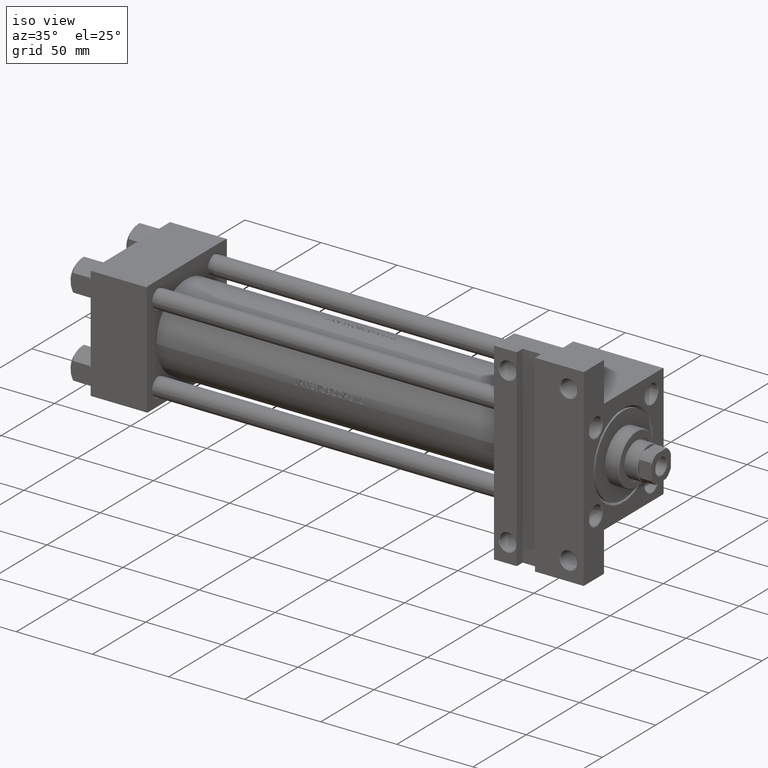
[diagram: clean part render]
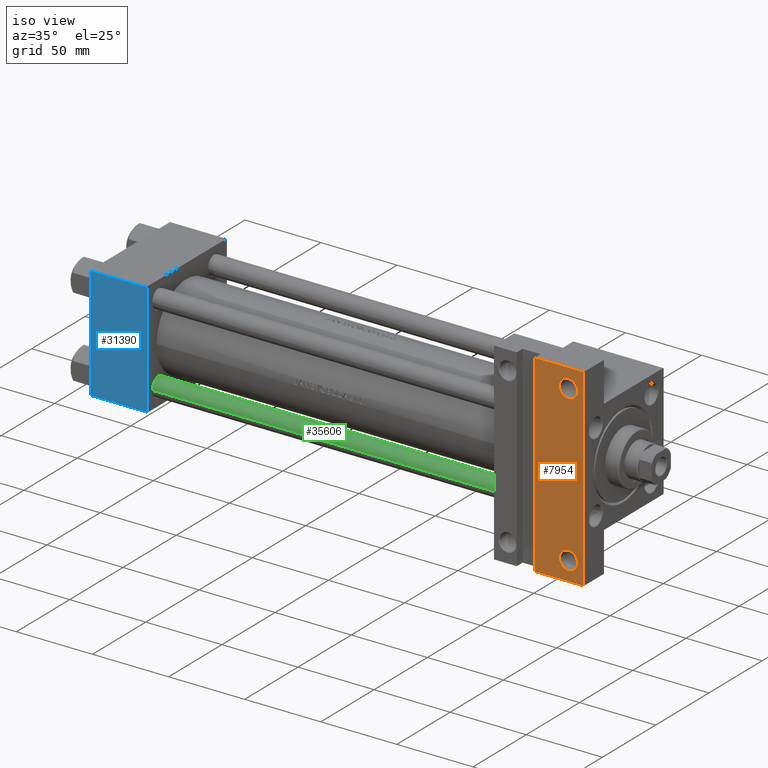
[diagram: same view with three faces highlighted in distinct colors, each labeled with its STEP entity id]
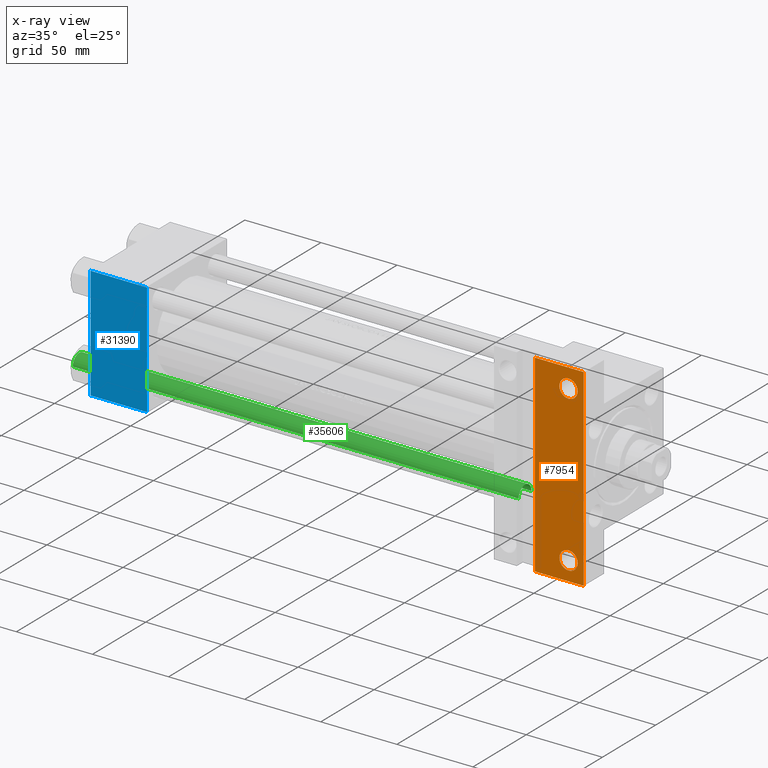
[diagram: x-ray of the same camera — body ghosted, the three highlighted faces saturated]
A machine part, iso view with three faces highlighted in distinct colors.
The next image is the same camera in x-ray (body ghosted, the three faces saturated) — at least one of them is partly hidden behind the body in this view.
Their STEP definitions:

[orange] entity #7954 — the highlighted planar face has unit normal (0, -1, 0).
#62 = DIRECTION ( 'NONE',  ( -1.000000000000000000, 0.000000000000000000, -0.000000000000000000 ) ) ;
#650 = ORIENTED_EDGE ( 'NONE', *, *, #35578, .T. ) ;
#958 = CARTESIAN_POINT ( 'NONE',  ( 324.0000000000000000, 63.49999999999997158, -37.50000000000000000 ) ) ;
#1208 = VERTEX_POINT ( 'NONE', #958 ) ;
#1663 = VERTEX_POINT ( 'NONE', #7598 ) ;
#2193 = LINE ( 'NONE', #28640, #12019 ) ;
#2293 = EDGE_CURVE ( 'NONE', #47281, #1208, #32255, .T. ) ;
#2924 = AXIS2_PLACEMENT_3D ( 'NONE', #15993, #30656, #8774 ) ;
#5849 = VECTOR ( 'NONE', #6535, 1000.000000000000000 ) ;
#6242 = EDGE_CURVE ( 'NONE', #47281, #45016, #25671, .T. ) ;
#6535 = DIRECTION ( 'NONE',  ( 1.000000000000000000, 0.000000000000000000, 0.000000000000000000 ) ) ;
#6736 = DIRECTION ( 'NONE',  ( -1.000000000000000000, 0.000000000000000000, 0.000000000000000000 ) ) ;
#7212 = DIRECTION ( 'NONE',  ( -0.000000000000000000, -0.000000000000000000, 1.000000000000000000 ) ) ;
#7598 = CARTESIAN_POINT ( 'NONE',  ( 308.0005000000000450, 51.00000000000000000, -37.50000000000000000 ) ) ;
#7683 = EDGE_LOOP ( 'NONE', ( #14501, #37921 ) ) ;
#7954 = ADVANCED_FACE ( 'NONE', ( #43646, #21699, #40251 ), #25072, .T. ) ;
#8307 = AXIS2_PLACEMENT_3D ( 'NONE', #21927, #40481, #62 ) ;
#8774 = DIRECTION ( 'NONE',  ( -1.000000000000000000, 0.000000000000000000, 0.000000000000000000 ) ) ;
#9852 = CARTESIAN_POINT ( 'NONE',  ( 292.0000000000000000, 63.49999999999997158, -37.50000000000000000 ) ) ;
#10120 = DIRECTION ( 'NONE',  ( 0.000000000000000000, -1.000000000000000000, 0.000000000000000000 ) ) ;
#10429 = DIRECTION ( 'NONE',  ( -1.000000000000000000, -0.000000000000000000, -0.000000000000000000 ) ) ;
#10770 = DIRECTION ( 'NONE',  ( -0.000000000000000000, -1.000000000000000000, -0.000000000000000000 ) ) ;
#11707 = ORIENTED_EDGE ( 'NONE', *, *, #18187, .T. ) ;
#11902 = CARTESIAN_POINT ( 'NONE',  ( 292.0000000000000000, -63.49999999999995737, -37.50000000000000000 ) ) ;
#12019 = VECTOR ( 'NONE', #10120, 1000.000000000000000 ) ;
#12104 = VECTOR ( 'NONE', #10770, 1000.000000000000000 ) ;
#12580 = EDGE_LOOP ( 'NONE', ( #23898, #650 ) ) ;
#13320 = CARTESIAN_POINT ( 'NONE',  ( 319.9994999999998413, 51.00000000000000000, -37.50000000000000000 ) ) ;
#14405 = CARTESIAN_POINT ( 'NONE',  ( 313.9999999999999432, 51.00000000000000000, -37.50000000000000000 ) ) ;
#14501 = ORIENTED_EDGE ( 'NONE', *, *, #38671, .T. ) ;
#14618 = EDGE_LOOP ( 'NONE', ( #18928, #27172, #39559, #11707 ) ) ;
#15756 = CARTESIAN_POINT ( 'NONE',  ( 313.9999999999999432, -51.00000000000000000, -37.50000000000000000 ) ) ;
#15945 = CIRCLE ( 'NONE', #2924, 5.999499999999880373 ) ;
#15993 = CARTESIAN_POINT ( 'NONE',  ( 313.9999999999999432, 51.00000000000000000, -37.50000000000000000 ) ) ;
#18187 = EDGE_CURVE ( 'NONE', #41976, #45016, #34965, .T. ) ;
#18357 = AXIS2_PLACEMENT_3D ( 'NONE', #42250, #45869, #45630 ) ;
#18928 = ORIENTED_EDGE ( 'NONE', *, *, #6242, .F. ) ;
#18979 = VERTEX_POINT ( 'NONE', #13320 ) ;
#21483 = CARTESIAN_POINT ( 'NONE',  ( 265.0000000000000000, -63.50000000000002842, -37.50000000000000000 ) ) ;
#21699 = FACE_BOUND ( 'NONE', #7683, .T. ) ;
#21927 = CARTESIAN_POINT ( 'NONE',  ( 324.0000000000000000, 37.50000000000000000, -37.50000000000000000 ) ) ;
#23556 = CARTESIAN_POINT ( 'NONE',  ( 308.0005000000000450, -51.00000000000000000, -37.50000000000000000 ) ) ;
#23898 = ORIENTED_EDGE ( 'NONE', *, *, #28611, .T. ) ;
#24647 = VECTOR ( 'NONE', #10429, 1000.000000000000000 ) ;
#25072 = PLANE ( 'NONE',  #8307 ) ;
#25671 = LINE ( 'NONE', #33129, #12104 ) ;
#27172 = ORIENTED_EDGE ( 'NONE', *, *, #2293, .T. ) ;
#27581 = CIRCLE ( 'NONE', #18357, 5.999499999999880373 ) ;
#28016 = DIRECTION ( 'NONE',  ( -0.000000000000000000, -0.000000000000000000, 1.000000000000000000 ) ) ;
#28611 = EDGE_CURVE ( 'NONE', #1663, #18979, #33527, .T. ) ;
#28640 = CARTESIAN_POINT ( 'NONE',  ( 324.0000000000000000, 37.50000000000000000, -37.50000000000000000 ) ) ;
#29174 = AXIS2_PLACEMENT_3D ( 'NONE', #15756, #28016, #42972 ) ;
#29376 = EDGE_CURVE ( 'NONE', #1208, #41976, #2193, .T. ) ;
#30656 = DIRECTION ( 'NONE',  ( -0.000000000000000000, -0.000000000000000000, 1.000000000000000000 ) ) ;
#32249 = VERTEX_POINT ( 'NONE', #40203 ) ;
#32255 = LINE ( 'NONE', #43611, #5849 ) ;
#33129 = CARTESIAN_POINT ( 'NONE',  ( 292.0000000000000000, -63.49999999999995737, -37.50000000000000000 ) ) ;
#33527 = CIRCLE ( 'NONE', #40464, 5.999499999999880373 ) ;
#34965 = LINE ( 'NONE', #21483, #24647 ) ;
#35578 = EDGE_CURVE ( 'NONE', #18979, #1663, #15945, .T. ) ;
#37921 = ORIENTED_EDGE ( 'NONE', *, *, #40470, .T. ) ;
#38671 = EDGE_CURVE ( 'NONE', #47228, #32249, #27581, .T. ) ;
#39179 = CIRCLE ( 'NONE', #29174, 5.999499999999880373 ) ;
#39559 = ORIENTED_EDGE ( 'NONE', *, *, #29376, .T. ) ;
#40203 = CARTESIAN_POINT ( 'NONE',  ( 319.9994999999998413, -51.00000000000000000, -37.50000000000000000 ) ) ;
#40251 = FACE_BOUND ( 'NONE', #12580, .T. ) ;
#40464 = AXIS2_PLACEMENT_3D ( 'NONE', #14405, #7212, #6736 ) ;
#40470 = EDGE_CURVE ( 'NONE', #32249, #47228, #39179, .T. ) ;
#40481 = DIRECTION ( 'NONE',  ( 0.000000000000000000, 0.000000000000000000, -1.000000000000000000 ) ) ;
#41976 = VERTEX_POINT ( 'NONE', #44826 ) ;
#42250 = CARTESIAN_POINT ( 'NONE',  ( 313.9999999999999432, -51.00000000000000000, -37.50000000000000000 ) ) ;
#42972 = DIRECTION ( 'NONE',  ( -1.000000000000000000, 0.000000000000000000, 0.000000000000000000 ) ) ;
#43611 = CARTESIAN_POINT ( 'NONE',  ( 265.0000000000000000, 63.49999999999997158, -37.50000000000000000 ) ) ;
#43646 = FACE_OUTER_BOUND ( 'NONE', #14618, .T. ) ;
#44826 = CARTESIAN_POINT ( 'NONE',  ( 324.0000000000000000, -63.50000000000002842, -37.50000000000000000 ) ) ;
#45016 = VERTEX_POINT ( 'NONE', #11902 ) ;
#45630 = DIRECTION ( 'NONE',  ( -1.000000000000000000, 0.000000000000000000, 0.000000000000000000 ) ) ;
#45869 = DIRECTION ( 'NONE',  ( -0.000000000000000000, -0.000000000000000000, 1.000000000000000000 ) ) ;
#47228 = VERTEX_POINT ( 'NONE', #23556 ) ;
#47281 = VERTEX_POINT ( 'NONE', #9852 ) ;

[blue] entity #31390 — the highlighted planar face has unit normal (0, -1, -0).
#2222 = CARTESIAN_POINT ( 'NONE',  ( 0.000000000000000000, 37.49999999999999289, -37.50000000000000000 ) ) ;
#4381 = CARTESIAN_POINT ( 'NONE',  ( 0.000000000000000000, -37.00000000000002132, -37.50000000000000711 ) ) ;
#4614 = LINE ( 'NONE', #4381, #19711 ) ;
#4940 = DIRECTION ( 'NONE',  ( 1.000000000000000000, 0.000000000000000000, 0.000000000000000000 ) ) ;
#6546 = CARTESIAN_POINT ( 'NONE',  ( 37.00000000000000000, -37.00000000000002132, -37.50000000000000711 ) ) ;
#8207 = EDGE_CURVE ( 'NONE', #36339, #19277, #10282, .T. ) ;
#9090 = VECTOR ( 'NONE', #39169, 1000.000000000000000 ) ;
#10005 = EDGE_CURVE ( 'NONE', #29554, #36339, #37895, .T. ) ;
#10282 = LINE ( 'NONE', #35064, #9090 ) ;
#11525 = CARTESIAN_POINT ( 'NONE',  ( 0.000000000000000000, 36.99999999999997868, -37.50000000000000000 ) ) ;
#15804 = AXIS2_PLACEMENT_3D ( 'NONE', #46693, #17277, #47174 ) ;
#17277 = DIRECTION ( 'NONE',  ( 0.000000000000000000, 9.251858538542972814E-17, -1.000000000000000000 ) ) ;
#19200 = EDGE_CURVE ( 'NONE', #29554, #22681, #23861, .T. ) ;
#19277 = VERTEX_POINT ( 'NONE', #6546 ) ;
#19711 = VECTOR ( 'NONE', #19731, 1000.000000000000000 ) ;
#19731 = DIRECTION ( 'NONE',  ( -1.000000000000000000, 0.000000000000000000, 0.000000000000000000 ) ) ;
#22681 = VERTEX_POINT ( 'NONE', #36130 ) ;
#23861 = LINE ( 'NONE', #2222, #43944 ) ;
#26565 = CARTESIAN_POINT ( 'NONE',  ( 37.00000000000000000, 36.99999999999997868, -37.50000000000000000 ) ) ;
#28021 = ORIENTED_EDGE ( 'NONE', *, *, #19200, .F. ) ;
#29230 = EDGE_CURVE ( 'NONE', #19277, #22681, #4614, .T. ) ;
#29554 = VERTEX_POINT ( 'NONE', #11525 ) ;
#31064 = FACE_OUTER_BOUND ( 'NONE', #33589, .T. ) ;
#31390 = ADVANCED_FACE ( 'NONE', ( #31064 ), #45793, .T. ) ;
#33306 = ORIENTED_EDGE ( 'NONE', *, *, #8207, .T. ) ;
#33589 = EDGE_LOOP ( 'NONE', ( #28021, #37878, #33306, #36691 ) ) ;
#35064 = CARTESIAN_POINT ( 'NONE',  ( 37.00000000000000000, 37.49999999999999289, -37.50000000000000000 ) ) ;
#36130 = CARTESIAN_POINT ( 'NONE',  ( 0.000000000000000000, -37.00000000000002132, -37.50000000000000711 ) ) ;
#36339 = VERTEX_POINT ( 'NONE', #36539 ) ;
#36539 = CARTESIAN_POINT ( 'NONE',  ( 37.00000000000000000, 36.99999999999997868, -37.50000000000000000 ) ) ;
#36691 = ORIENTED_EDGE ( 'NONE', *, *, #29230, .T. ) ;
#37878 = ORIENTED_EDGE ( 'NONE', *, *, #10005, .T. ) ;
#37895 = LINE ( 'NONE', #26565, #46063 ) ;
#39169 = DIRECTION ( 'NONE',  ( 0.000000000000000000, -1.000000000000000000, -9.251858538542972814E-17 ) ) ;
#43944 = VECTOR ( 'NONE', #46292, 1000.000000000000000 ) ;
#45793 = PLANE ( 'NONE',  #15804 ) ;
#46063 = VECTOR ( 'NONE', #4940, 1000.000000000000000 ) ;
#46292 = DIRECTION ( 'NONE',  ( 0.000000000000000000, -1.000000000000000000, -9.251858538542972814E-17 ) ) ;
#46693 = CARTESIAN_POINT ( 'NONE',  ( 37.00000000000000000, 37.49999999999999289, -37.50000000000000000 ) ) ;
#47174 = DIRECTION ( 'NONE',  ( 0.000000000000000000, 1.000000000000000000, 9.251858538542972814E-17 ) ) ;

[green] entity #35606 — the highlighted cylindrical surface (edge-blend (fillet) strip) has radius 6 mm, axis along (1, 0, 0).
#594 = VECTOR ( 'NONE', #1872, 1000.000000000000000 ) ;
#1872 = DIRECTION ( 'NONE',  ( -0.000000000000000000, -0.000000000000000000, -1.000000000000000000 ) ) ;
#2845 = DIRECTION ( 'NONE',  ( -0.000000000000000000, -0.000000000000000000, -1.000000000000000000 ) ) ;
#4630 = VERTEX_POINT ( 'NONE', #43231 ) ;
#5980 = CARTESIAN_POINT ( 'NONE',  ( 6.000000000000000888, 7.347880794884120722E-16, 294.0000000000000000 ) ) ;
#6382 = DIRECTION ( 'NONE',  ( -0.000000000000000000, -0.000000000000000000, 1.000000000000000000 ) ) ;
#7026 = EDGE_CURVE ( 'NONE', #22407, #46751, #38450, .T. ) ;
#8250 = DIRECTION ( 'NONE',  ( 0.000000000000000000, 0.000000000000000000, -1.000000000000000000 ) ) ;
#8702 = ORIENTED_EDGE ( 'NONE', *, *, #21560, .T. ) ;
#9257 = CYLINDRICAL_SURFACE ( 'NONE', #45944, 6.000000000000000888 ) ;
#10267 = CARTESIAN_POINT ( 'NONE',  ( -6.000000000000000888, 0.000000000000000000, 0.5000000000000559552 ) ) ;
#13095 = DIRECTION ( 'NONE',  ( 1.000000000000000000, 0.000000000000000000, 0.000000000000000000 ) ) ;
#15065 = EDGE_LOOP ( 'NONE', ( #8702, #41682, #25855, #23111 ) ) ;
#18605 = CIRCLE ( 'NONE', #30133, 6.000000000000000888 ) ;
#18827 = CARTESIAN_POINT ( 'NONE',  ( 0.000000000000000000, 0.000000000000000000, 293.5000000000000568 ) ) ;
#20148 = CARTESIAN_POINT ( 'NONE',  ( -6.000000000000000888, 0.000000000000000000, 294.0000000000000000 ) ) ;
#21096 = LINE ( 'NONE', #5980, #44957 ) ;
#21560 = EDGE_CURVE ( 'NONE', #22407, #4630, #18605, .T. ) ;
#21854 = CARTESIAN_POINT ( 'NONE',  ( 6.000000000000000888, 7.347880794884120722E-16, 0.5000000000000559552 ) ) ;
#22407 = VERTEX_POINT ( 'NONE', #28258 ) ;
#23111 = ORIENTED_EDGE ( 'NONE', *, *, #7026, .F. ) ;
#23923 = CARTESIAN_POINT ( 'NONE',  ( 0.000000000000000000, 0.000000000000000000, 294.0000000000000000 ) ) ;
#24663 = EDGE_CURVE ( 'NONE', #4630, #36395, #21096, .T. ) ;
#25855 = ORIENTED_EDGE ( 'NONE', *, *, #38834, .T. ) ;
#28258 = CARTESIAN_POINT ( 'NONE',  ( -6.000000000000000888, 0.000000000000000000, 293.5000000000000568 ) ) ;
#30133 = AXIS2_PLACEMENT_3D ( 'NONE', #18827, #8250, #37599 ) ;
#30193 = DIRECTION ( 'NONE',  ( -0.000000000000000000, -0.000000000000000000, -1.000000000000000000 ) ) ;
#34474 = CIRCLE ( 'NONE', #38344, 6.000000000000000888 ) ;
#35225 = CARTESIAN_POINT ( 'NONE',  ( 0.000000000000000000, 0.000000000000000000, 0.5000000000000559552 ) ) ;
#35606 = ADVANCED_FACE ( 'NONE', ( #42246 ), #9257, .T. ) ;
#36395 = VERTEX_POINT ( 'NONE', #21854 ) ;
#37599 = DIRECTION ( 'NONE',  ( 1.000000000000000000, 0.000000000000000000, 0.000000000000000000 ) ) ;
#38344 = AXIS2_PLACEMENT_3D ( 'NONE', #35225, #6382, #13095 ) ;
#38369 = DIRECTION ( 'NONE',  ( -1.000000000000000000, 0.000000000000000000, 0.000000000000000000 ) ) ;
#38450 = LINE ( 'NONE', #20148, #594 ) ;
#38834 = EDGE_CURVE ( 'NONE', #36395, #46751, #34474, .T. ) ;
#41682 = ORIENTED_EDGE ( 'NONE', *, *, #24663, .T. ) ;
#42246 = FACE_OUTER_BOUND ( 'NONE', #15065, .T. ) ;
#43231 = CARTESIAN_POINT ( 'NONE',  ( 6.000000000000000888, 7.347880794884120722E-16, 293.5000000000000568 ) ) ;
#44957 = VECTOR ( 'NONE', #2845, 1000.000000000000000 ) ;
#45944 = AXIS2_PLACEMENT_3D ( 'NONE', #23923, #30193, #38369 ) ;
#46751 = VERTEX_POINT ( 'NONE', #10267 ) ;